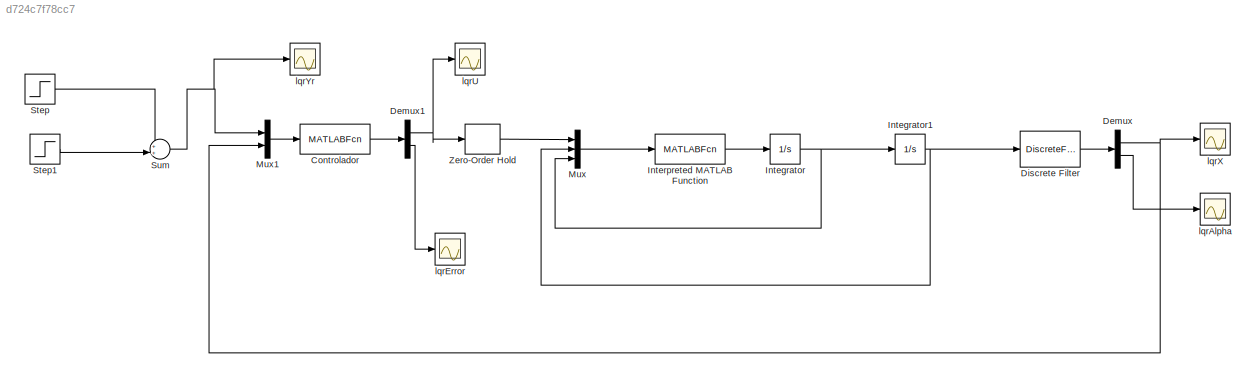
MODEL slx_d724c7f78cc7
KIND model
CONFIG AbsTol = auto
CONFIG EnableMultiTasking = off
CONFIG FixedStep = auto
CONFIG MaxStep = auto
CONFIG MinStep = auto
CONFIG RelTol = 1e-3
CONFIG SampleTimeConstraint = Unconstrained
CONFIG Solver = VariableStepAuto
CONFIG SolverName = VariableStepAuto
CONFIG StartTime = 0.0
CONFIG StopTime = ttotal
BLOCK [MATLABFcn] Controlador
  MATLABFcn = ControlIncremental(u(1), u(2))
  OutputDimensions = 2
  Ports = [1, 1]
BLOCK [Demux] Demux
  DisplayOption = bar
  Outputs = 2
  Ports = [1, 2]
BLOCK [Demux] Demux1
  DisplayOption = bar
  Outputs = 2
  Ports = [1, 2]
BLOCK [DiscreteFilter] Discrete Filter
  Denominator = [1]
  InputPortMap = u0
  Ports = [1, 1]
  SampleTime = tmuestra
BLOCK [Integrator] Integrator
  InitialCondition = [0 0]
  Ports = [1, 1]
BLOCK [Integrator] Integrator1
  InitialCondition = [p0 0]
  Ports = [1, 1]
BLOCK [MATLABFcn] Interpreted MATLAB Function
  MATLABFcn = SimulBAB(u(1), u(2), u(3), u(4), u(5))
  OutputDimensions = 2
  Ports = [1, 1]
BLOCK [Mux] Mux
  DisplayOption = bar
  Inputs = 3
  Ports = [3, 1]
BLOCK [Mux] Mux1
  DisplayOption = bar
  Inputs = 2
  Ports = [2, 1]
BLOCK [Step] Step
  After = Yr
  SampleTime = tmuestra
BLOCK [Step] Step1
  After = -3*Yr
  SampleTime = tmuestra
  Time = 5
BLOCK [Sum] Sum
  IconShape = round
  InputSameDT = off
  Inputs = ++|
  OutDataTypeStr = Inherit: Inherit via internal rule
  Ports = [2, 1]
  SaturateOnIntegerOverflow = off
BLOCK [ZeroOrderHold] Zero-Order Hold
  SampleTime = tmuestra
BLOCK [Scope] lqrAlpha 
  Floating = off
  NumInputPorts = 1
  Ports = [1]
  ScopeSpecificationString = Simulink.scopes.TimeScopeBlockCfg('CurrentConfiguration', extmgr.ConfigurationSet(extmgr.Configuration('Core','General UI',true),extmgr.Configuration('Core','Source UI',true),extmgr.Configuration('Sources','WiredSimulink',true,'DataLoggingVariableName','lqrAlpha','DataLogging',true,'DataLoggingSaveFormat','Array','SampleTime','tmuestra'),extmgr.Configuration('Visuals','Time Domain',true,'Serialize...<+1439ch>
BLOCK [Scope] lqrError
  Floating = off
  NumInputPorts = 1
  Ports = [1]
  ScopeSpecificationString = Simulink.scopes.TimeScopeBlockCfg('CurrentConfiguration', extmgr.ConfigurationSet(extmgr.Configuration('Core','General UI',true),extmgr.Configuration('Core','Source UI',true),extmgr.Configuration('Sources','WiredSimulink',true,'DataLogging',true,'DataLoggingVariableName','lqrError','DataLoggingSaveFormat','Array','SampleTime','tmuestra'),extmgr.Configuration('Visuals','Time Domain',true,'Serialize...<+1482ch>
BLOCK [Scope] lqrU 
  Floating = off
  NumInputPorts = 1
  Ports = [1]
  ScopeSpecificationString = Simulink.scopes.TimeScopeBlockCfg('CurrentConfiguration', extmgr.ConfigurationSet(extmgr.Configuration('Core','General UI',true),extmgr.Configuration('Core','Source UI',true),extmgr.Configuration('Sources','WiredSimulink',true,'DataLogging',true,'DataLoggingVariableName','lqrU','DataLoggingSaveFormat','Array','SampleTime','tmuestra'),extmgr.Configuration('Visuals','Time Domain',true,'SerializedDis...<+1482ch>
BLOCK [Scope] lqrX
  Floating = off
  NumInputPorts = 1
  Ports = [1]
  ScopeSpecificationString = Simulink.scopes.TimeScopeBlockCfg('CurrentConfiguration', extmgr.ConfigurationSet(extmgr.Configuration('Core','General UI',true),extmgr.Configuration('Core','Source UI',true),extmgr.Configuration('Sources','WiredSimulink',true,'DataLoggingVariableName','lqrX','DataLogging',true,'DataLoggingSaveFormat','Array','SampleTime','tmuestra'),extmgr.Configuration('Visuals','Time Domain',true,'SerializedDis...<+1477ch>
BLOCK [Scope] lqrYr 
  Floating = off
  NumInputPorts = 1
  Ports = [1]
  ScopeSpecificationString = Simulink.scopes.TimeScopeBlockCfg('CurrentConfiguration', extmgr.ConfigurationSet(extmgr.Configuration('Core','General UI',true),extmgr.Configuration('Core','Source UI',true),extmgr.Configuration('Sources','WiredSimulink',true,'DataLoggingVariableName','lqrYr','DataLogging',true,'DataLoggingSaveFormat','Array','SampleTime','tmuestra'),extmgr.Configuration('Visuals','Time Domain',true,'SerializedDi...<+1433ch>
LINE Controlador:1 -> Demux1:1
NET Demux1:1 -> Zero-Order Hold:1, lqrU :1
LINE Demux1:2 -> lqrError:1
NET Demux:1 -> Mux1:2, lqrX:1
LINE Demux:2 -> lqrAlpha :1
LINE Discrete Filter:1 -> Demux:1
NET Integrator1:1 -> Discrete Filter:1, Mux:2
NET Integrator:1 -> Integrator1:1, Mux:3
LINE Interpreted MATLAB Function:1 -> Integrator:1
LINE Mux1:1 -> Controlador:1
LINE Mux:1 -> Interpreted MATLAB Function:1
LINE Step1:1 -> Sum:2
LINE Step:1 -> Sum:1
NET Sum:1 -> Mux1:1, lqrYr :1
LINE Zero-Order Hold:1 -> Mux:1
note: NET lines group one-source signal fan-out (src -> all destinations, sorted); 1:1 wires keep LINE
